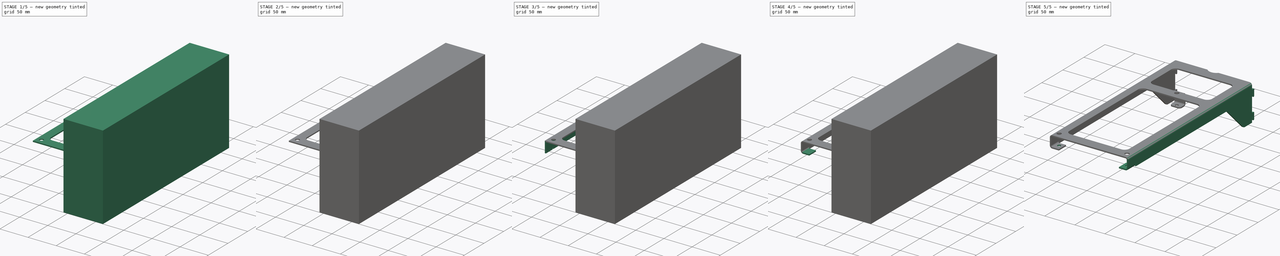
[diagram: build sequence overview — one tinted view per stage of 5, left to right]
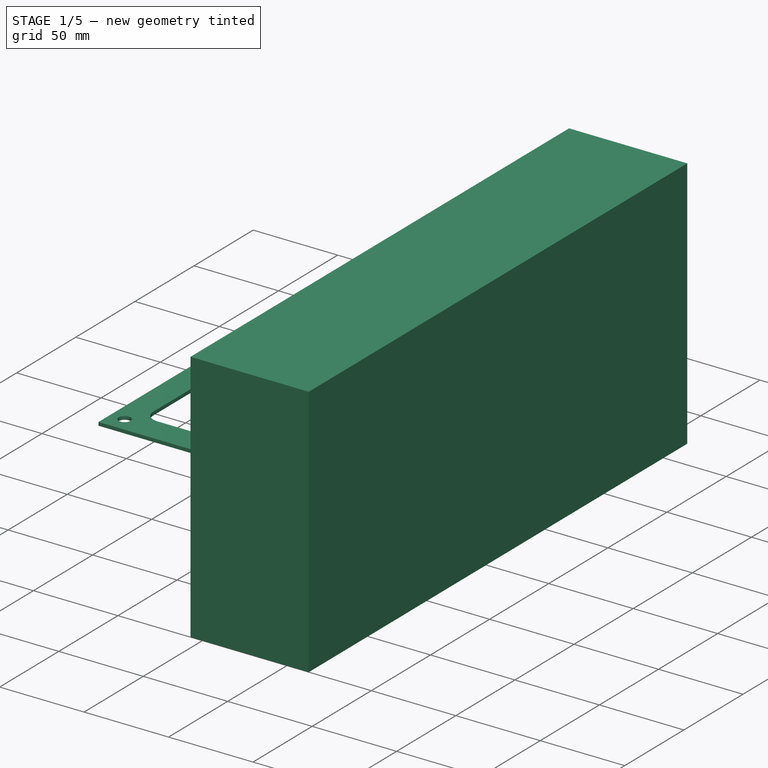
[diagram: stage 1 of 5 — iso view after this stage's code; geometry added in this stage tinted green]
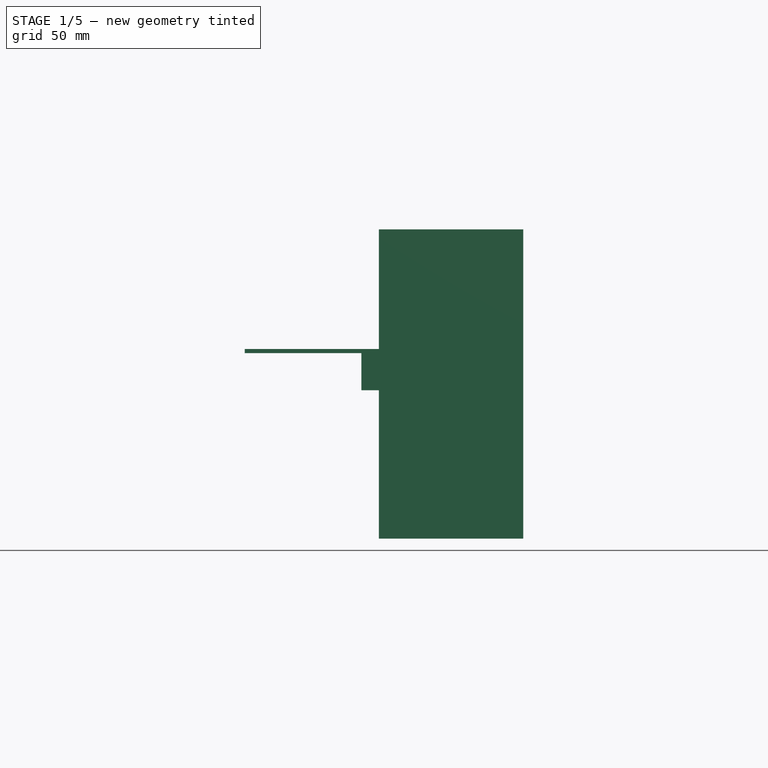
[diagram: stage 1 of 5 — front view after this stage's code; geometry added in this stage tinted green]
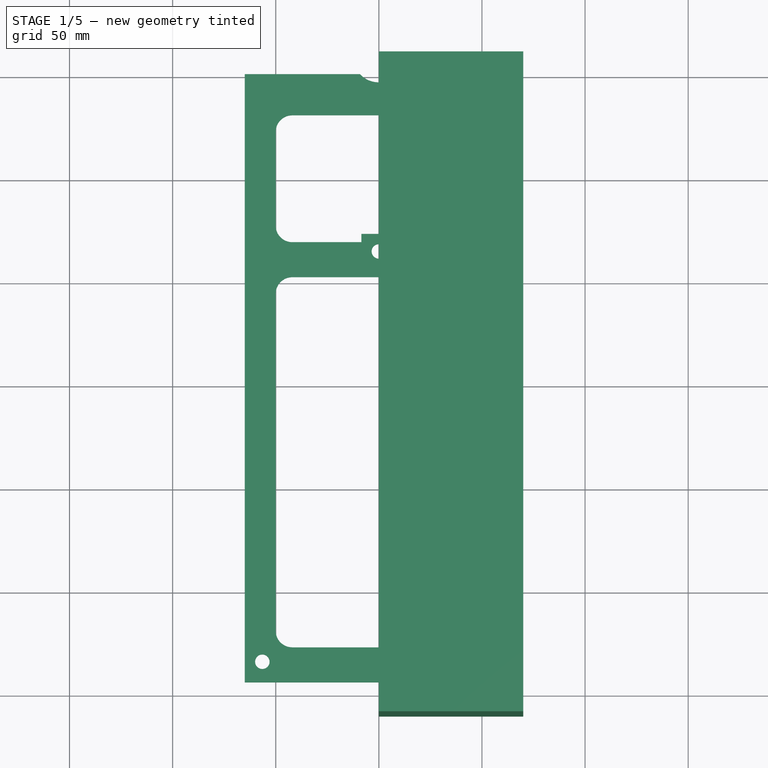
[diagram: stage 1 of 5 — top view after this stage's code; geometry added in this stage tinted green]
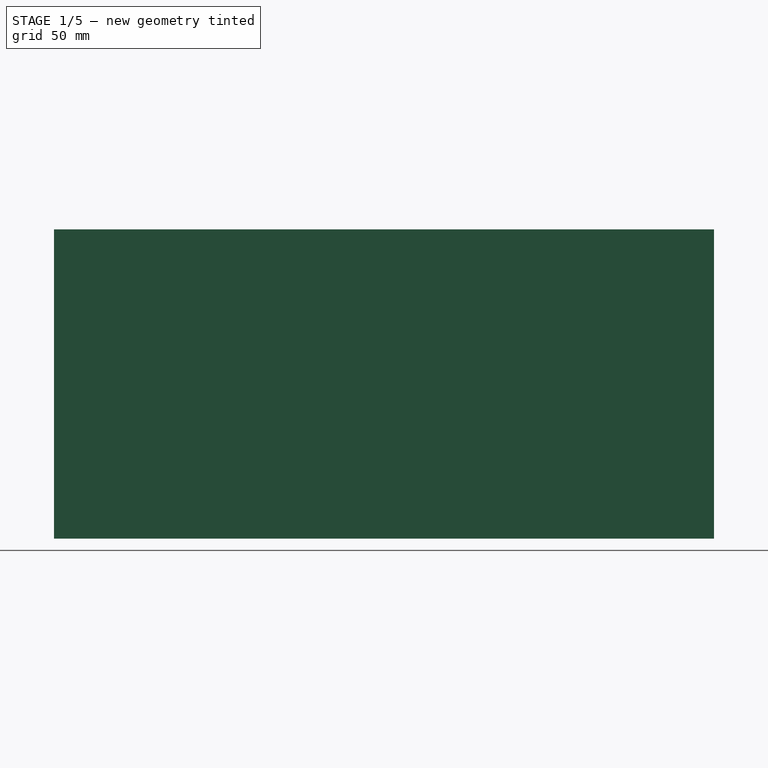
[diagram: stage 1 of 5 — right view after this stage's code; geometry added in this stage tinted green]
FCSTD DOCUMENT  (FreeCAD 0.14R3310 (Git))
Label: 19. ESCUADRA CARTOLADA 003
License: CC-BY 3.0
LicenseURL: http://creativecommons.org/licenses/by/3.0/
objects: PartDesign::Fillet×8, Sketcher::SketchObject×7, PartDesign::Pad×6, PartDesign::Pocket×1, Part::Cut×1, Part::Mirroring×1, Part::Fuse×1
note: 32 computed .brp shape members not serialized (recipe doc carries the construction recipe); baked Part::Feature solids carry a one-line shape summary decoded from their .brp

FEATURE [Sketcher::SketchObject] Sketch
  sketch-geometry (23):
    g0: LineSegment StartX=-65 StartY=0 StartZ=0 EndX=-65 EndY=-295 EndZ=0
    g1: LineSegment StartX=-65 StartY=-295 StartZ=0 EndX=65 EndY=-295 EndZ=0
    g2: LineSegment StartX=65 StartY=-295 StartZ=0 EndX=65 EndY=0 EndZ=0
    g3: ArcOfCircle CenterX=0 CenterY=8.5 CenterZ=0 NormalX=0 NormalY=0 NormalZ=1 Radius=12.5 StartAngle=3.88936 EndAngle=5.53542
    g4: LineSegment StartX=-9.16515 StartY=0 StartZ=0 EndX=-65 EndY=0 EndZ=0
    g5: LineSegment StartX=9.16515 StartY=0 StartZ=0 EndX=65 EndY=0 EndZ=0
    g6: LineSegment StartX=-50 StartY=-20 StartZ=0 EndX=50 EndY=-20 EndZ=0
    g7: LineSegment StartX=50 StartY=-20 StartZ=0 EndX=50 EndY=-81.5 EndZ=0
    g8: LineSegment [constr] StartX=50 StartY=-81.5 StartZ=0 EndX=-50 EndY=-81.5 EndZ=0
    g9: LineSegment StartX=-50 StartY=-81.5 StartZ=0 EndX=-50 EndY=-20 EndZ=0
    g10: LineSegment StartX=-50 StartY=-98.5 StartZ=0 EndX=50 EndY=-98.5 EndZ=0
    g11: LineSegment StartX=50 StartY=-98.5 StartZ=0 EndX=50 EndY=-278 EndZ=0
    g12: LineSegment StartX=50 StartY=-278 StartZ=0 EndX=-50 EndY=-278 EndZ=0
    g13: LineSegment StartX=-50 StartY=-278 StartZ=0 EndX=-50 EndY=-98.5 EndZ=0
    g14: LineSegment StartX=-8.5 StartY=-77.5 StartZ=0 EndX=8.5 EndY=-77.5 EndZ=0
    g15: LineSegment StartX=8.5 StartY=-77.5 StartZ=0 EndX=8.5 EndY=-81.5 EndZ=0
    g16: LineSegment [constr] StartX=8.5 StartY=-81.5 StartZ=0 EndX=-8.5 EndY=-81.5 EndZ=0
    g17: LineSegment StartX=-8.5 StartY=-81.5 StartZ=0 EndX=-8.5 EndY=-77.5 EndZ=0
    g18: LineSegment StartX=-8.5 StartY=-81.5 StartZ=0 EndX=-50 EndY=-81.5 EndZ=0
    g19: LineSegment StartX=8.5 StartY=-81.5 StartZ=0 EndX=50 EndY=-81.5 EndZ=0
    g20: Circle CenterX=0 CenterY=-86 CenterZ=0 NormalX=0 NormalY=0 NormalZ=1 Radius=3.5
    g21: Circle CenterX=-56.5 CenterY=-285 CenterZ=0 NormalX=0 NormalY=0 NormalZ=1 Radius=3.5
    g22: Circle CenterX=56.5 CenterY=-285 CenterZ=0 NormalX=0 NormalY=0 NormalZ=1 Radius=3.5
  constraints (66):
    c: Vertical(g0)
    c: Coincident(g0,g1)
    c: Horizontal(g1)
    c: Coincident(g1,g2)
    c: Vertical(g2)
    c: Symmetric(g2,g0,g-2)
    c: Distance(g1) = 130
    c: DistanceY(g0) = -295
    c: PointOnObject(g0,g-1)
    c: PointOnObject(g3,g-2)
    c: PointOnObject(g3,g-1)
    c: PointOnObject(g3,g-1)
    c: Radius(g3) = 12.5
    c: DistanceY(g-1,g3) = 8.5
    c: Coincident(g4,g3)
    c: Coincident(g4,g0)
    c: Coincident(g5,g3)
    c: Coincident(g5,g2)
    c: Coincident(g6,g7)
    c: Coincident(g7,g8)
    c: Coincident(g8,g9)
    c: Coincident(g9,g6)
    c: Horizontal(g6)
    c: Horizontal(g8)
    c: Vertical(g7)
    c: Vertical(g9)
    c: Coincident(g10,g11)
    c: Coincident(g11,g12)
    c: Coincident(g12,g13)
    c: Coincident(g13,g10)
    c: Horizontal(g10)
    c: Horizontal(g12)
    c: Vertical(g11)
    c: Vertical(g13)
    c: Symmetric(g6,g6,g-2)
    c: Distance(g6,g4) = 20
    c: Distance(g7) = 61.5
    c: Distance(g8) = 100
    c: Coincident(g14,g15)
    c: Coincident(g15,g16)
    c: Coincident(g16,g17)
    c: Coincident(g17,g14)
    c: Horizontal(g14)
    c: Horizontal(g16)
    c: Vertical(g15)
    c: Vertical(g17)
    c: PointOnObject(g15,g8)
    c: Distance(g15) = 4
    c: Distance(g14) = 17
    c: Symmetric(g14,g14,g-2)
    c: Coincident(g18,g16)
    c: Coincident(g18,g8)
    c: Coincident(g19,g15)
    c: Coincident(g19,g7)
    c: Distance(g10,g8) = 17
    c: Distance(g10) = 100
    c: Symmetric(g10,g10,g-2)
    c: Distance(g11) = 179.5
    c: PointOnObject(g20,g-2)
    c: Radius(g20) = 3.5
    c: Distance(g20,g10) = 12.5
    c: Radius(g21) = 3.5
    c: Distance(g21,g0) = 8.5
    c: Distance(g21,g1) = 10
    c: Equal(g22,g21)
    c: Symmetric(g22,g21,g-2)
FEATURE [PartDesign::Pad] Pad
  Length = 2
  Length2 = 100
  Sketch = -> Sketch
  Type = 0
FEATURE [PartDesign::Fillet] Fillet
  Base = -> Pad [Edge35,Edge19,Edge20,Edge38,Edge32,Edge41,Edge23,Edge26]
  Radius = 8
FEATURE [Sketcher::SketchObject] Sketch001
  ExternalGeometry = -> [Fillet]
  Placement = pos=(0,-77.5,0) rot=(0,0.707107,0.707107;3.14159rad)
  Support = -> Fillet [Face24]
  sketch-geometry (4):
    g0: LineSegment StartX=-8.5 StartY=2 StartZ=0 EndX=8.5 EndY=2 EndZ=0
    g1: LineSegment StartX=8.5 StartY=2 StartZ=0 EndX=8.5 EndY=-18 EndZ=0
    g2: LineSegment StartX=8.5 StartY=-18 StartZ=0 EndX=-8.5 EndY=-18 EndZ=0
    g3: LineSegment StartX=-8.5 StartY=-18 StartZ=0 EndX=-8.5 EndY=2 EndZ=0
  constraints (11):
    c: Coincident(g0,g1)
    c: Coincident(g1,g2)
    c: Coincident(g2,g3)
    c: Coincident(g3,g0)
    c: Horizontal(g0)
    c: Horizontal(g2)
    c: Vertical(g1)
    c: Vertical(g3)
    c: Coincident(g0,g-3)
    c: Coincident(g0,g-3)
    c: Distance(g1) = 20
FEATURE [PartDesign::Pad] Pad001
  Length = 2
  Length2 = 100
  Reversed = true
  Sketch = -> Sketch001
  Type = 0
FEATURE [Sketcher::SketchObject] Sketch006
  Placement = pos=(0,0,0) rot=(0.57735,0.57735,0.57735;2.0944rad)
  sketch-geometry (4):
    g0: LineSegment StartX=-310 StartY=60 StartZ=0 EndX=10 EndY=60 EndZ=0
    g1: LineSegment StartX=10 StartY=60 StartZ=0 EndX=10 EndY=-90 EndZ=0
    g2: LineSegment StartX=10 StartY=-90 StartZ=0 EndX=-310 EndY=-90 EndZ=0
    g3: LineSegment StartX=-310 StartY=-90 StartZ=0 EndX=-310 EndY=60 EndZ=0
  constraints (12):
    c: Coincident(g0,g1)
    c: Coincident(g1,g2)
    c: Coincident(g2,g3)
    c: Coincident(g3,g0)
    c: Horizontal(g0)
    c: Horizontal(g2)
    c: Vertical(g1)
    c: Vertical(g3)
    c: DistanceX(g-2,g0) = 10
    c: DistanceY(g-1,g0) = 60
    c: Distance(g1) = 150
    c: Distance(g0) = 320
FEATURE [PartDesign::Pad] Pad005
  Length = 70
  Length2 = 100
  Placement = pos=(0,0,0) rot=(0.57735,0.57735,0.57735;2.0944rad)
  Sketch = -> Sketch006
  Type = 0
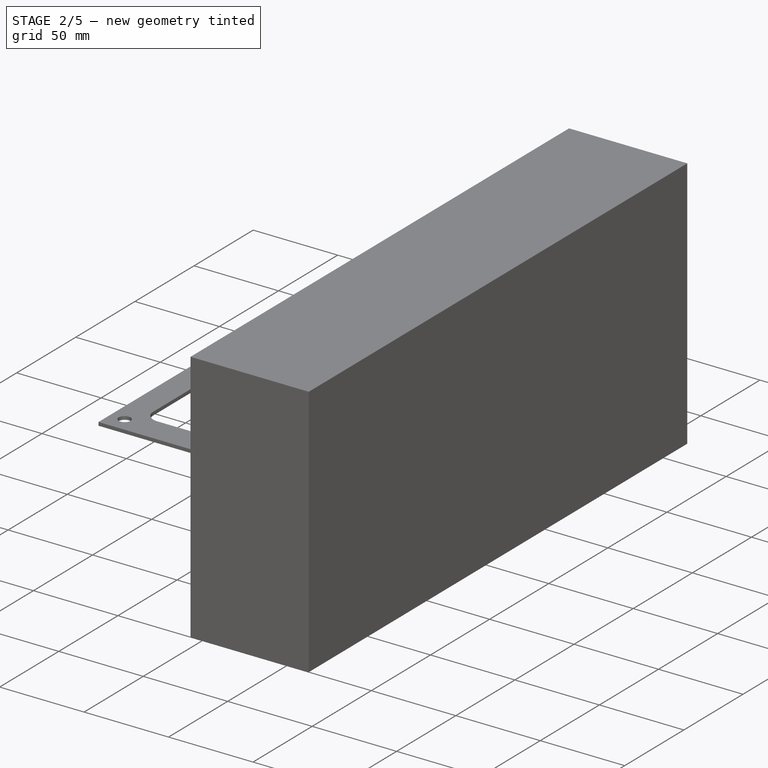
[diagram: stage 2 of 5 — iso view after this stage's code; geometry added in this stage tinted green]
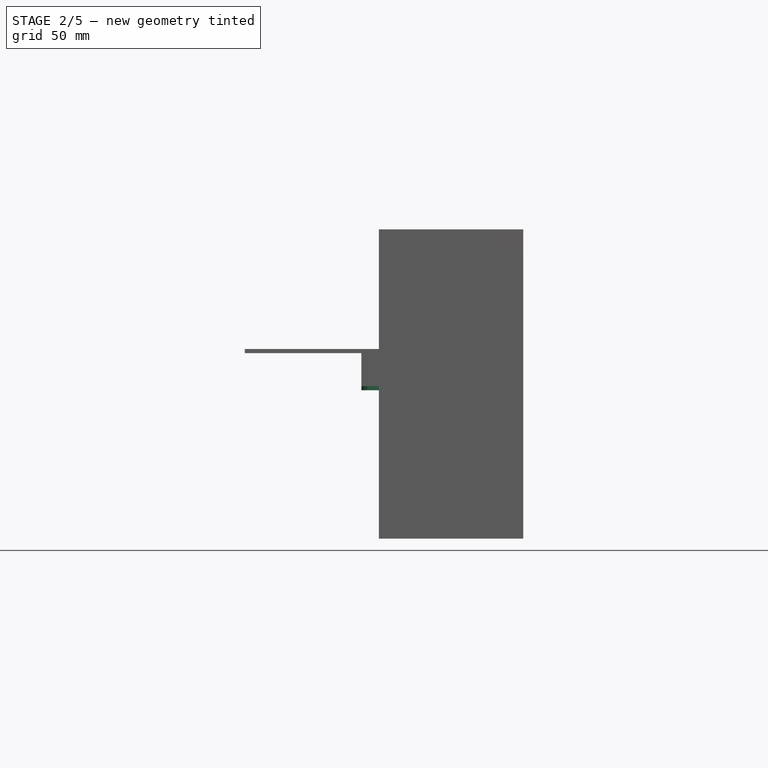
[diagram: stage 2 of 5 — front view after this stage's code; geometry added in this stage tinted green]
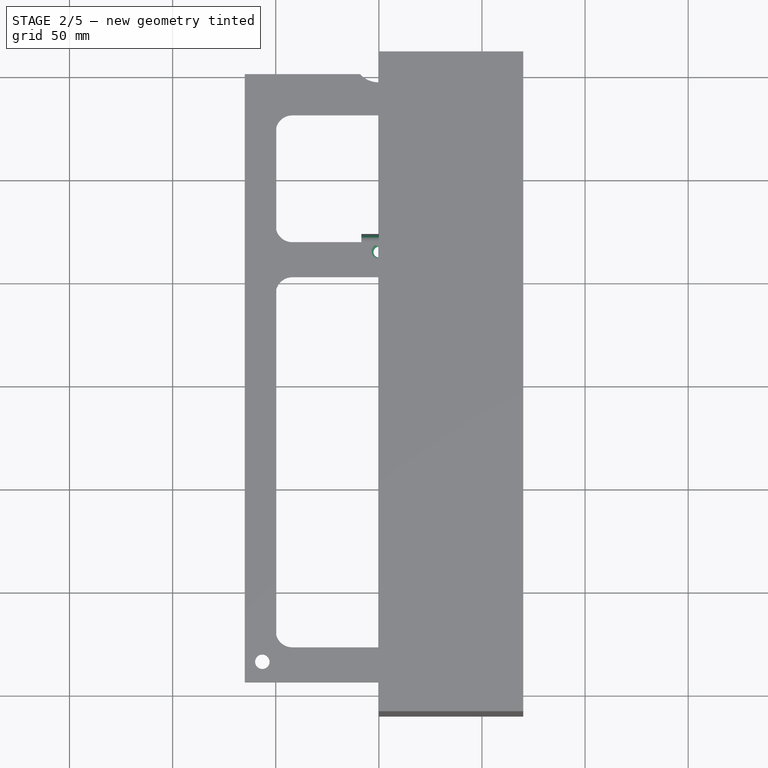
[diagram: stage 2 of 5 — top view after this stage's code; geometry added in this stage tinted green]
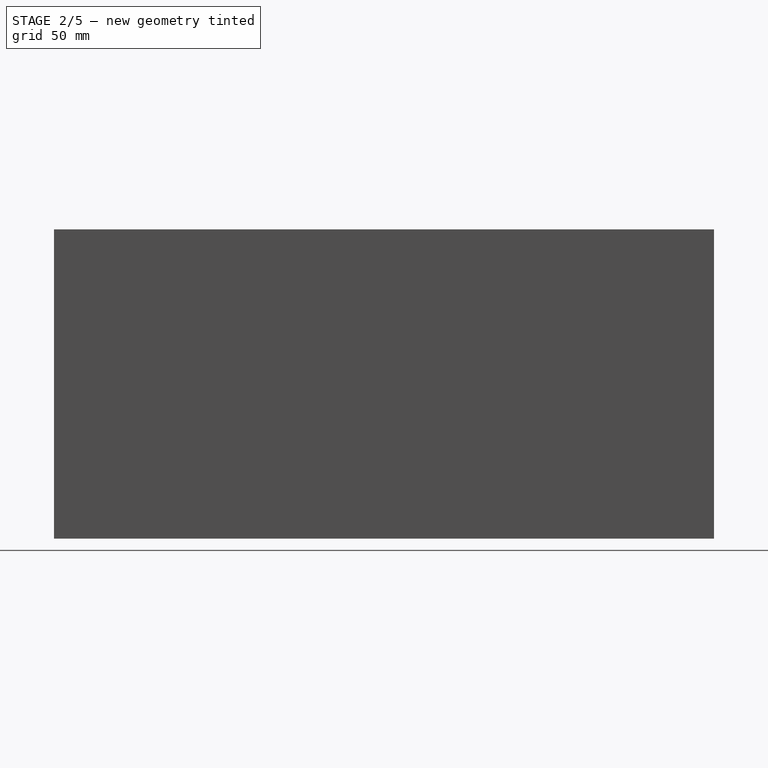
[diagram: stage 2 of 5 — right view after this stage's code; geometry added in this stage tinted green]
FEATURE [Sketcher::SketchObject] Sketch002
  ExternalGeometry = -> [Pad001]
  Placement = pos=(0,0,-18) rot=(1,0,0;3.14159rad)
  Support = -> Pad001 [Face1]
  sketch-geometry (5):
    g0: LineSegment StartX=-8.5 StartY=77.5 StartZ=0 EndX=8.5 EndY=77.5 EndZ=0
    g1: LineSegment StartX=8.5 StartY=77.5 StartZ=0 EndX=8.5 EndY=90.5 EndZ=0
    g2: LineSegment StartX=8.5 StartY=90.5 StartZ=0 EndX=-8.5 EndY=90.5 EndZ=0
    g3: LineSegment StartX=-8.5 StartY=90.5 StartZ=0 EndX=-8.5 EndY=77.5 EndZ=0
    g4: Circle CenterX=0 CenterY=86 CenterZ=0 NormalX=0 NormalY=0 NormalZ=1 Radius=2.6
  constraints (14):
    c: Coincident(g0,g1)
    c: Coincident(g1,g2)
    c: Coincident(g2,g3)
    c: Coincident(g3,g0)
    c: Horizontal(g0)
    c: Horizontal(g2)
    c: Vertical(g1)
    c: Vertical(g3)
    c: Coincident(g0,g-3)
    c: Coincident(g-3,g0)
    c: Distance(g1) = 13
    c: PointOnObject(g4,g-2)
    c: Radius(g4) = 2.6
    c: Distance(g4,g2) = 4.5
FEATURE [PartDesign::Pad] Pad002
  Length = 2
  Length2 = 100
  Reversed = true
  Sketch = -> Sketch002
  Type = 0
FEATURE [PartDesign::Fillet] Fillet001
  Base = -> Pad002 [Edge93,Edge94]
  Radius = 4
FEATURE [PartDesign::Fillet] Fillet002
  Base = -> Fillet001 [Edge30,Edge31]
  Radius = 4
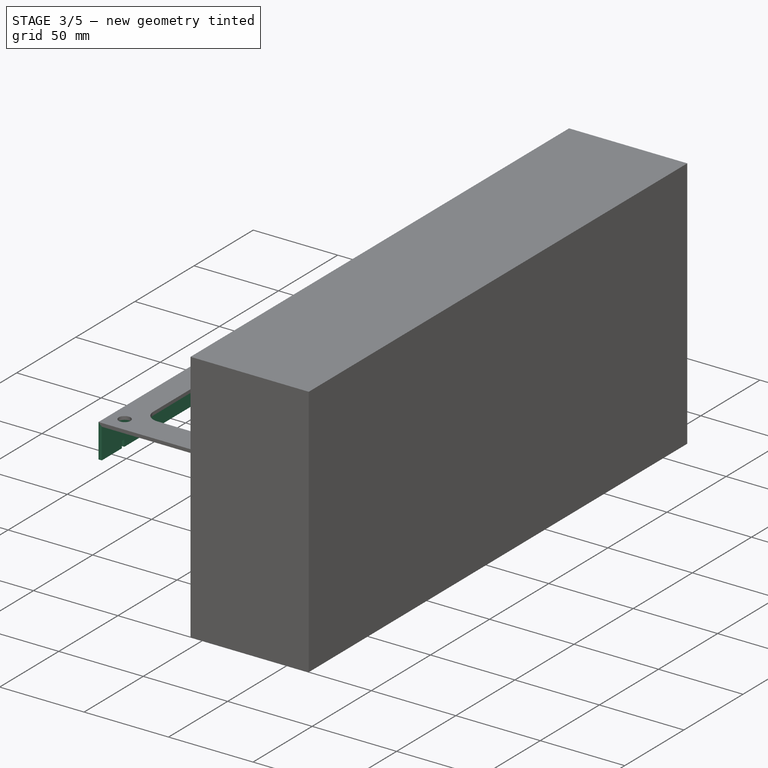
[diagram: stage 3 of 5 — iso view after this stage's code; geometry added in this stage tinted green]
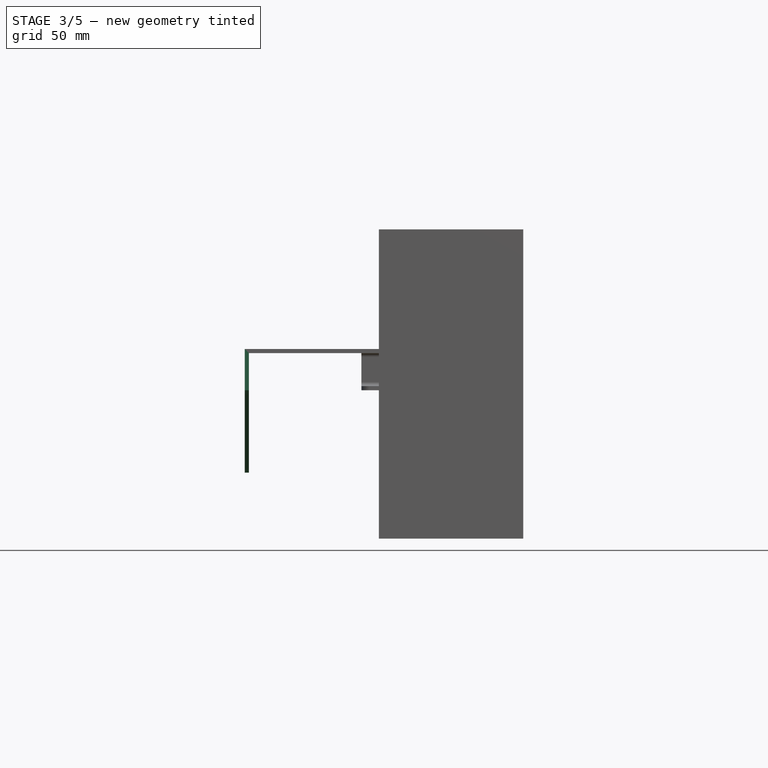
[diagram: stage 3 of 5 — front view after this stage's code; geometry added in this stage tinted green]
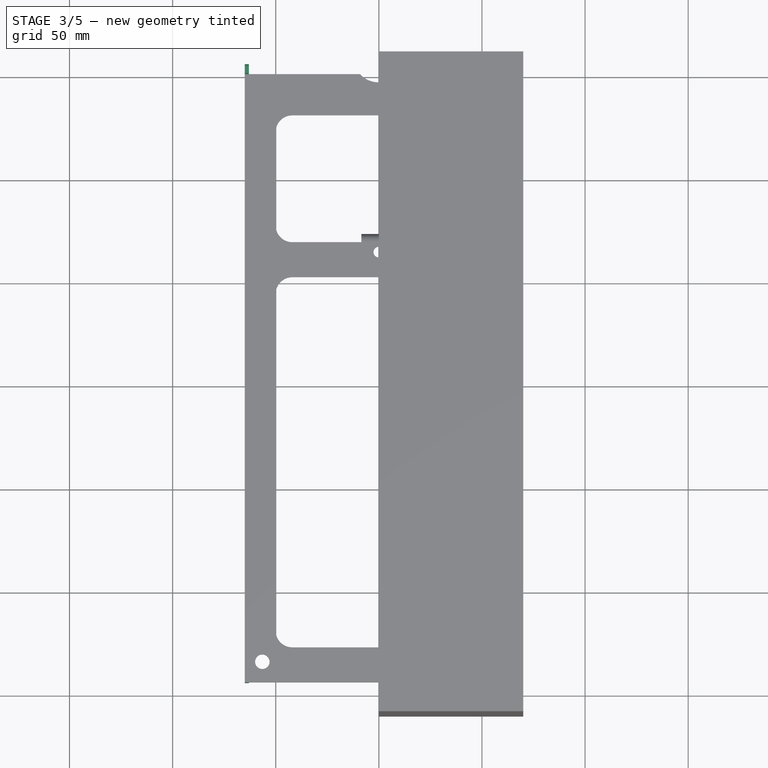
[diagram: stage 3 of 5 — top view after this stage's code; geometry added in this stage tinted green]
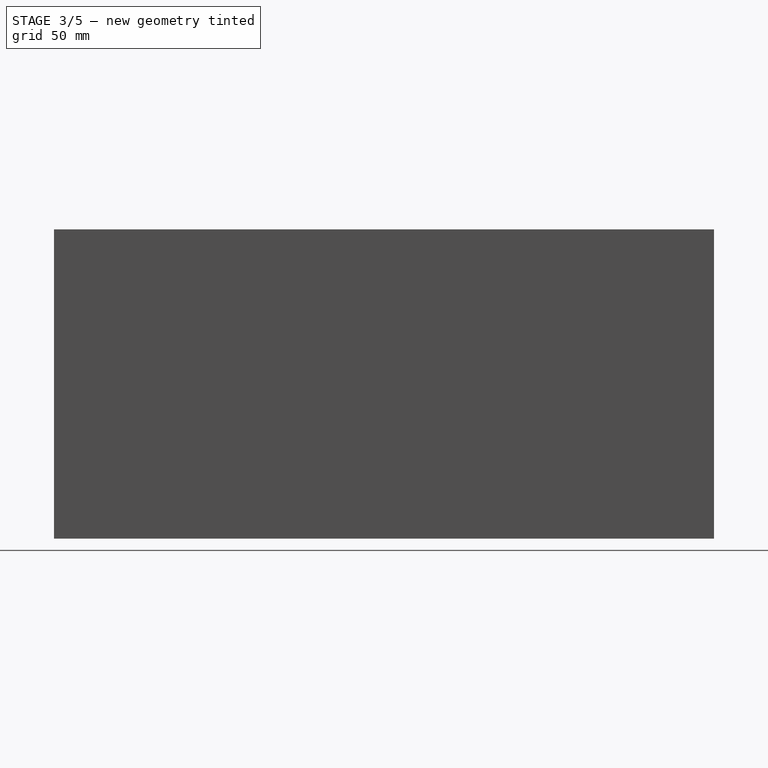
[diagram: stage 3 of 5 — right view after this stage's code; geometry added in this stage tinted green]
FEATURE [PartDesign::Fillet] Fillet003
  Base = -> Fillet002 [Edge30,Edge22]
  Radius = 2
FEATURE [Sketcher::SketchObject] Sketch003
  ExternalGeometry = -> [Fillet003]
  Placement = pos=(-65,0,0) rot=(0.57735,-0.57735,-0.57735;2.0944rad)
  Support = -> Fillet003 [Face28]
  sketch-geometry (26):
    g0: LineSegment StartX=0 StartY=2 StartZ=0 EndX=295 EndY=2 EndZ=0
    g1: LineSegment StartX=295 StartY=2 StartZ=0 EndX=295 EndY=-18 EndZ=0
    g2: LineSegment [constr] StartX=0 StartY=-58 StartZ=0 EndX=0 EndY=2 EndZ=0
    g3: LineSegment StartX=276.007 StartY=-18 StartZ=0 EndX=63.3174 EndY=-18 EndZ=0
    g4: LineSegment StartX=57.6606 StartY=-20.3431 StartZ=0 EndX=22.3469 EndY=-55.6569 EndZ=0
    g5: LineSegment StartX=0 StartY=-58 StartZ=0 EndX=16.69 EndY=-58 EndZ=0
    g6: ArcOfCircle CenterX=16.69 CenterY=-50 CenterZ=0 NormalX=0 NormalY=0 NormalZ=1 Radius=8 StartAngle=4.71239 EndAngle=5.49779
    g7: ArcOfCircle CenterX=63.3174 CenterY=-26 CenterZ=0 NormalX=0 NormalY=0 NormalZ=1 Radius=8 StartAngle=1.57079 EndAngle=2.35619
    g8: LineSegment StartX=0 StartY=2 StartZ=0 EndX=0 EndY=-8.5 EndZ=0
    g9: LineSegment StartX=0 StartY=-8.5 StartZ=0 EndX=-5 EndY=-8.5 EndZ=0
    g10: LineSegment StartX=-5 StartY=-8.5 StartZ=0 EndX=-5 EndY=-20.5 EndZ=0
    g11: ArcOfCircle CenterX=-0.93 CenterY=-14.63 CenterZ=0 NormalX=0 NormalY=0 NormalZ=1 Radius=0.93 StartAngle=6.28319 EndAngle=9.29388
    g12: LineSegment StartX=-1.85204 StartY=-14.5086 StartZ=0 EndX=-2.64083 EndY=-20.5 EndZ=0
    g13: LineSegment StartX=-5 StartY=-20.5 StartZ=0 EndX=-2.64083 EndY=-20.5 EndZ=0
    g14: LineSegment StartX=0 StartY=-14.63 StartZ=0 EndX=0 EndY=-43.5 EndZ=0
    g15: LineSegment StartX=0 StartY=-43.5 StartZ=0 EndX=-5 EndY=-43.5 EndZ=0
    g16: LineSegment StartX=-5 StartY=-43.5 StartZ=0 EndX=-5 EndY=-55.5 EndZ=0
    g17: LineSegment StartX=-2 StartY=-49.5 StartZ=0 EndX=-2 EndY=-52.5 EndZ=0
    g18: ArcOfCircle CenterX=-1 CenterY=-49.5 CenterZ=0 NormalX=0 NormalY=0 NormalZ=1 Radius=1 StartAngle=7.767e-09 EndAngle=3.14159
    g19: LineSegment StartX=0 StartY=-49.5 StartZ=0 EndX=0 EndY=-58 EndZ=0
    g20: LineSegment StartX=-2 StartY=-52.5 StartZ=0 EndX=-2.39496 EndY=-55.5 EndZ=0
    g21: LineSegment StartX=-5 StartY=-55.5 StartZ=0 EndX=-2.39496 EndY=-55.5 EndZ=0
    g22: LineSegment StartX=276.007 StartY=-18 StartZ=0 EndX=276.007 EndY=-14 EndZ=0
    g23: LineSegment StartX=276.007 StartY=-14 StartZ=0 EndX=278.007 EndY=-14 EndZ=0
    g24: LineSegment StartX=278.007 StartY=-14 StartZ=0 EndX=278.007 EndY=-18 EndZ=0
    g25: LineSegment StartX=278.007 StartY=-18 StartZ=0 EndX=295 EndY=-18 EndZ=0
  constraints (79):
    c: Coincident(g0,g1)
    c: Coincident(g2,g0)
    c: Vertical(g1)
    c: Coincident(g0,g-3)
    c: Coincident(g0,g-3)
    c: Distance(g2) = 60
    c: Horizontal(g3)
    c: Distance(g3) = 212.69
    c: Angle(g4,g3) = 2.35619
    c: Coincident(g5,g2)
    c: Horizontal(g5)
    c: Distance(g5) = 16.69
    c: Coincident(g6,g5)
    c: Radius(g6) = 8
    c: Coincident(g4,g6)
    c: Tangent(g5,g6)
    c: Tangent(g7,g3)
    c: Coincident(g7,g3)
    c: Radius(g7) = 8
    c: Coincident(g7,g4)
    c: Tangent(g7,g4)
    c: Tangent(g6,g4)
    c: Coincident(g8,g0)
    c: Vertical(g8)
    c: DistanceY(g-1,g8) = -8.5
    c: Coincident(g9,g8)
    c: Horizontal(g9)
    c: Distance(g9) = 5
    c: Coincident(g10,g9)
    c: Vertical(g10)
    c: Tangent(g11,g2)
    c: PointOnObject(g11,g2)
    c: Distance(g11,g2) = 0.93
    c: DistanceY(g-1,g11) = -14.63
    c: Coincident(g12,g11)
    c: Tangent(g11,g12)
    c: Angle(g12,g2) = 0.1309
    c: Coincident(g13,g10)
    c: Horizontal(g13)
    c: Coincident(g13,g12)
    c: Coincident(g14,g11)
    c: PointOnObject(g14,g2)
    c: Vertical(g14)
    c: Coincident(g15,g14)
    c: Horizontal(g15)
    c: Distance(g15) = 5
    c: Coincident(g16,g15)
    c: Vertical(g16)
    c: Distance(g16) = 12
    c: Distance(g10) = 12
    c: Distance(g10,g15) = 23
    c: Vertical(g17)
    c: Distance(g17,g2) = 2
    c: Coincident(g18,g17)
    c: PointOnObject(g18,g2)
    c: Distance(g18,g5) = 8.5
    c: Tangent(g18,g17)
    c: Coincident(g19,g18)
    c: Coincident(g19,g2)
    c: Tangent(g18,g2)
    c: Coincident(g20,g17)
    c: Distance(g17) = 3
    c: Angle(g17,g20) = 3.01069
    c: Coincident(g21,g16)
    c: Coincident(g21,g20)
    c: Horizontal(g21)
    c: Distance(g1) = 20
    c: Distance(g0,g3) = 20
    c: Coincident(g3,g22)
    c: Vertical(g22)
    c: Coincident(g22,g23)
    c: Horizontal(g23)
    c: Coincident(g23,g24)
    c: Vertical(g24)
    c: Coincident(g24,g25)
    c: Coincident(g25,g1)
    c: Horizontal(g25)
    c: Distance(g24) = 4
    c: Distance(g23) = 2
FEATURE [PartDesign::Pad] Pad003
  Length = 2
  Length2 = 100
  Reversed = true
  Sketch = -> Sketch003
  Type = 0
FEATURE [PartDesign::Fillet] Fillet004
  Base = -> Pad003 [Edge31,Edge5,Edge2,Edge1]
  Radius = 1
FEATURE [PartDesign::Fillet] Fillet005
  Base = -> Fillet004 [Edge107,Edge109,Edge111,Edge113]
  Radius = 1
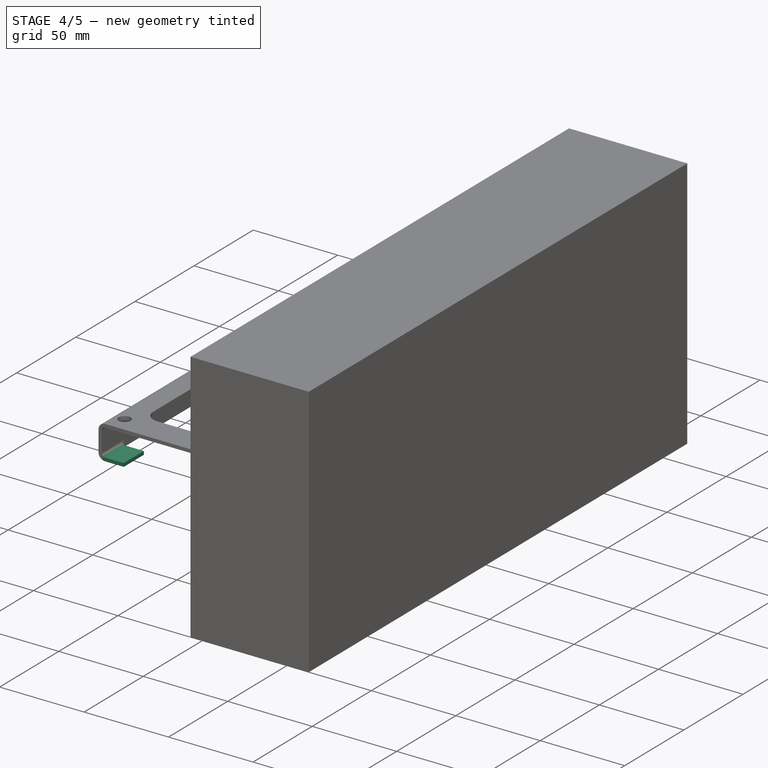
[diagram: stage 4 of 5 — iso view after this stage's code; geometry added in this stage tinted green]
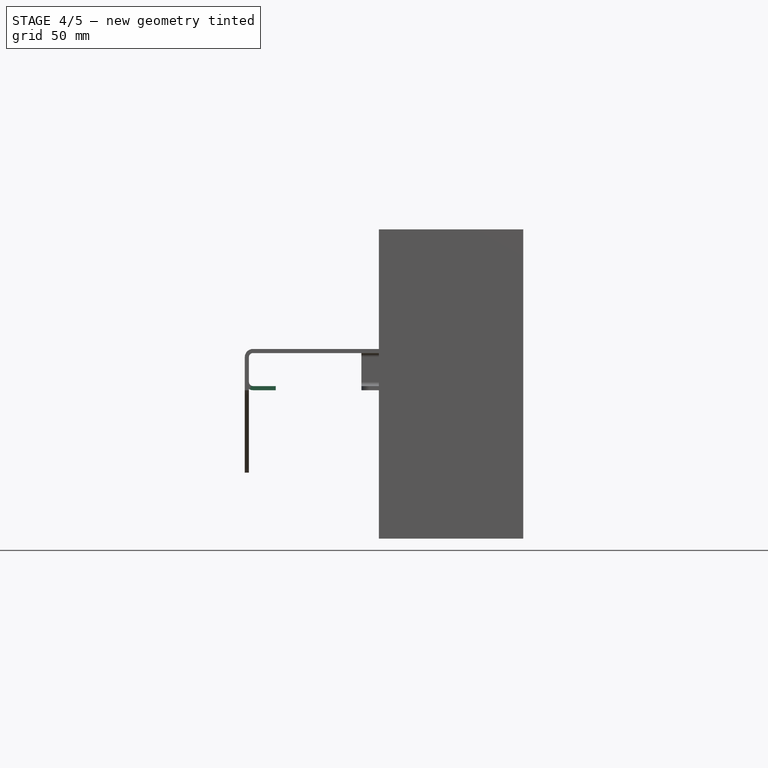
[diagram: stage 4 of 5 — front view after this stage's code; geometry added in this stage tinted green]
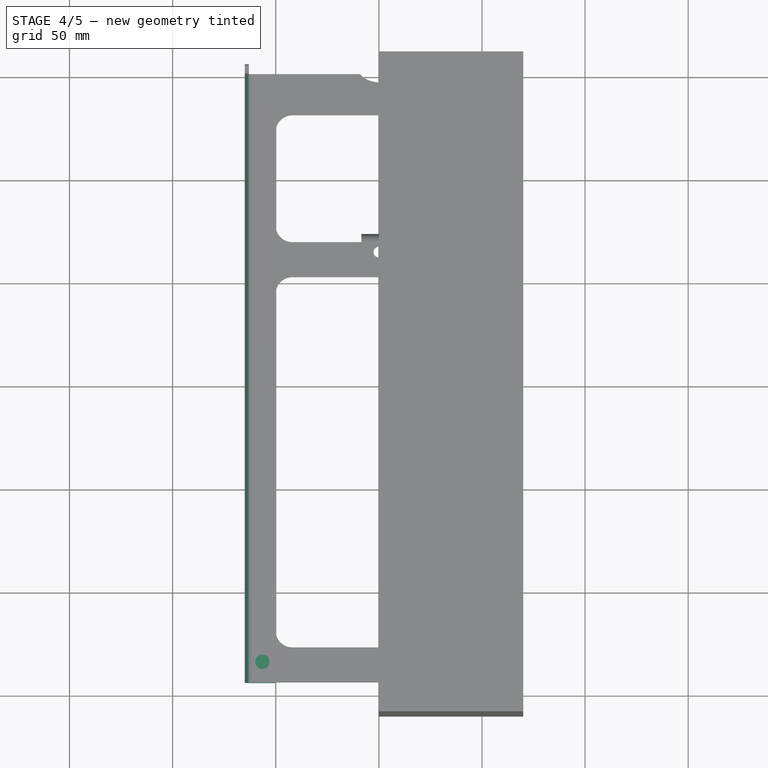
[diagram: stage 4 of 5 — top view after this stage's code; geometry added in this stage tinted green]
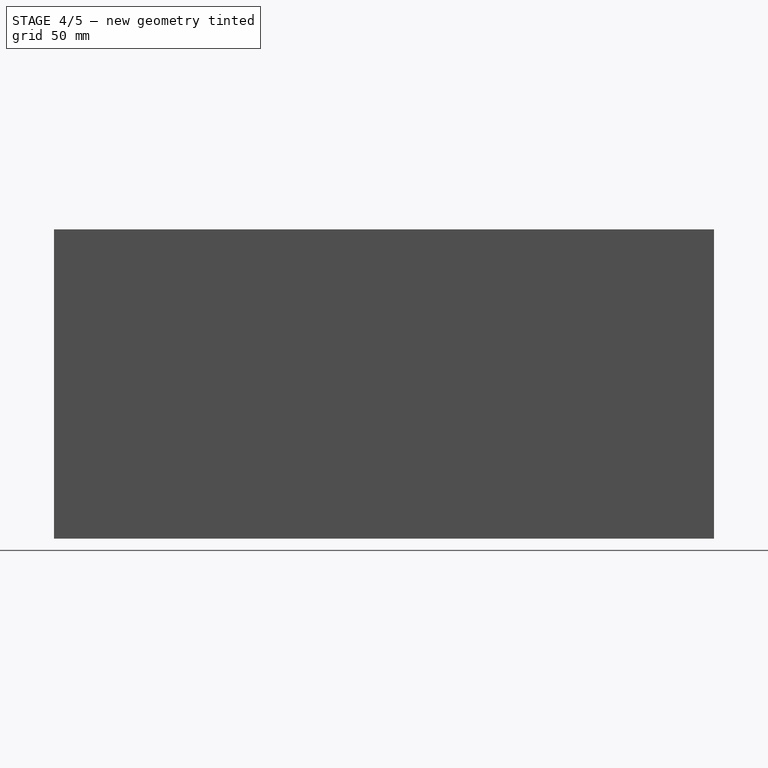
[diagram: stage 4 of 5 — right view after this stage's code; geometry added in this stage tinted green]
FEATURE [Sketcher::SketchObject] Sketch004
  ExternalGeometry = -> [Fillet005]
  Placement = pos=(-63,0,0) rot=(0.57735,0.57735,0.57735;2.0944rad)
  Support = -> Fillet005 [Face35]
  sketch-geometry (4):
    g0: LineSegment StartX=-295 StartY=-18 StartZ=0 EndX=-278.007 EndY=-18 EndZ=0
    g1: LineSegment StartX=-278.007 StartY=-18 StartZ=0 EndX=-278.007 EndY=-16 EndZ=0
    g2: LineSegment StartX=-278.007 StartY=-16 StartZ=0 EndX=-295 EndY=-16 EndZ=0
    g3: LineSegment StartX=-295 StartY=-16 StartZ=0 EndX=-295 EndY=-18 EndZ=0
  constraints (11):
    c: Coincident(g0,g1)
    c: Coincident(g1,g2)
    c: Coincident(g2,g3)
    c: Coincident(g3,g0)
    c: Horizontal(g0)
    c: Horizontal(g2)
    c: Vertical(g1)
    c: Vertical(g3)
    c: Coincident(g0,g-3)
    c: Coincident(g0,g-3)
    c: Distance(g3) = 2
FEATURE [PartDesign::Pad] Pad004
  Length = 13
  Length2 = 100
  Sketch = -> Sketch004
  Type = 0
FEATURE [PartDesign::Fillet] Fillet006
  Base = -> Pad004 [Edge42,Edge63]
  Radius = 2
FEATURE [PartDesign::Fillet] Fillet007
  Base = -> Fillet006 [Edge24,Edge47]
  Radius = 4
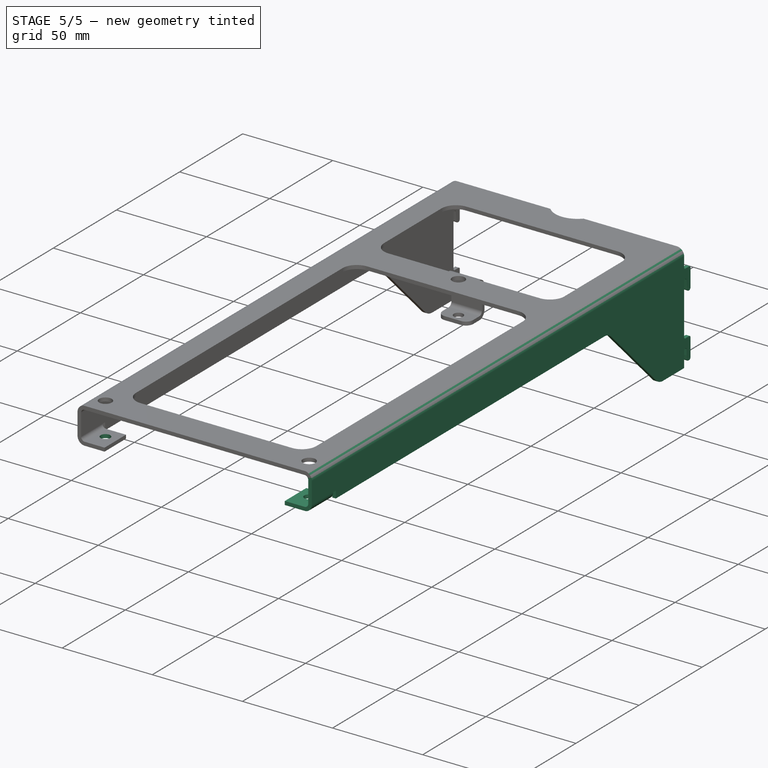
[diagram: stage 5 of 5 — iso view after this stage's code; geometry added in this stage tinted green]
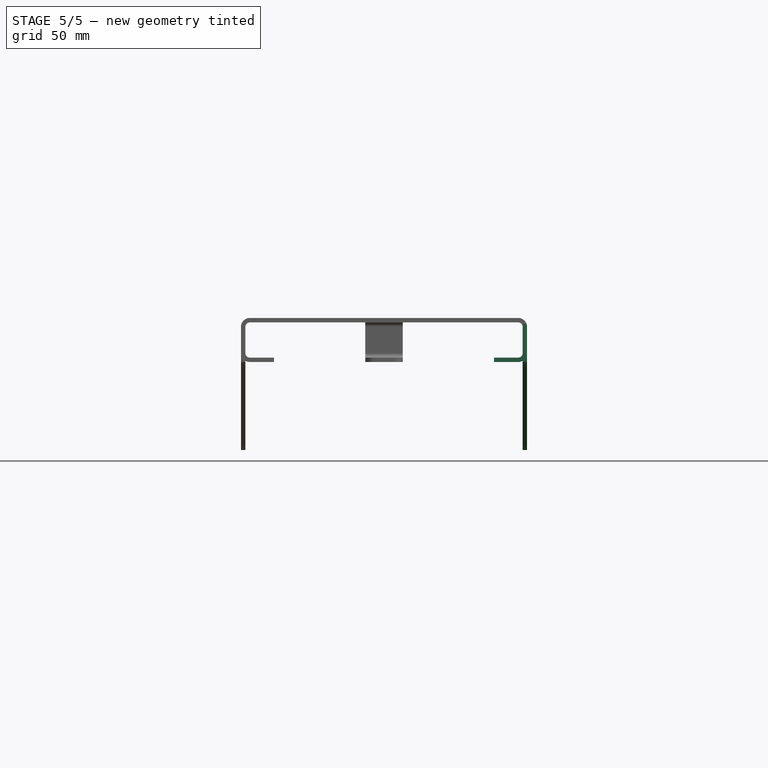
[diagram: stage 5 of 5 — front view after this stage's code; geometry added in this stage tinted green]
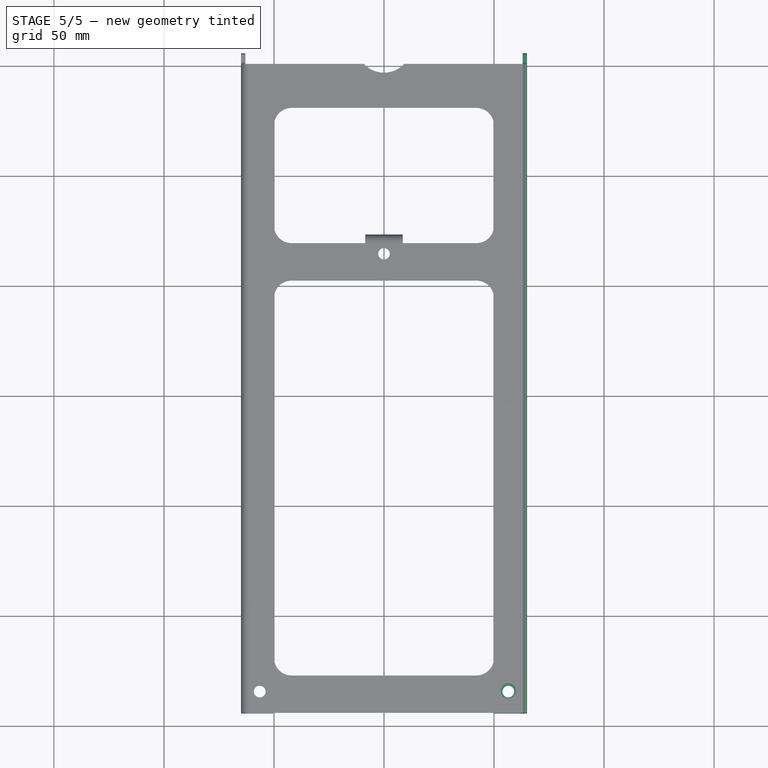
[diagram: stage 5 of 5 — top view after this stage's code; geometry added in this stage tinted green]
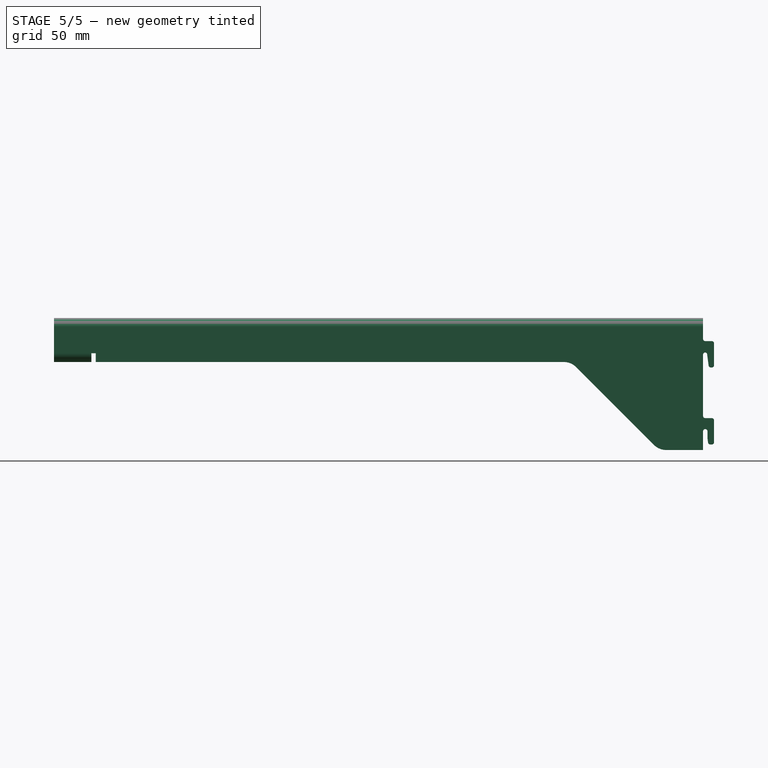
[diagram: stage 5 of 5 — right view after this stage's code; geometry added in this stage tinted green]
FEATURE [Sketcher::SketchObject] Sketch005
  Placement = pos=(0,0,-18) rot=(1,0,0;3.14159rad)
  Support = -> Fillet007 [Face2]
  sketch-geometry (1):
    g0: Circle CenterX=-56.5 CenterY=285 CenterZ=0 NormalX=0 NormalY=0 NormalZ=1 Radius=2.66073
  constraints (2):
    c: DistanceX(g-2,g0) = -56.5
    c: DistanceY(g-1,g0) = 285
FEATURE [PartDesign::Pocket] Pocket
  Length = 5
  Sketch = -> Sketch005
  Type = 0
FEATURE [Part::Cut] Cut
  Base = -> Pocket
  Tool = -> Pad005
FEATURE [Part::Mirroring] Part__Mirroring  label="Cut (Mirror #1)"
  Base = (0,0,0)
  Normal = (1,0,0)
  Source = -> Cut
FEATURE [Part::Fuse] Fusion
  Base = -> Cut
  Tool = -> Part__Mirroring
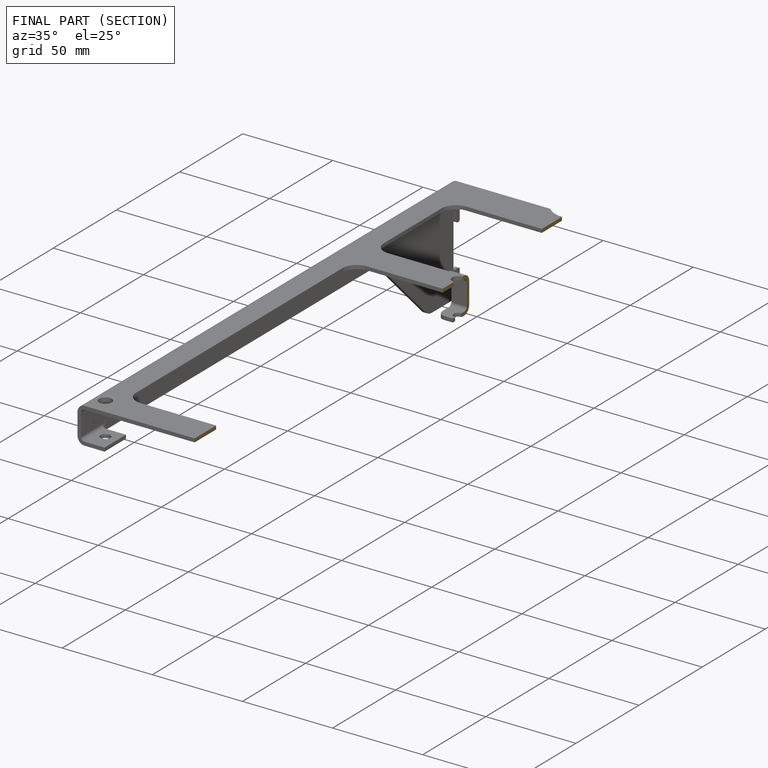
[diagram: finished part — half-section view (interior)]
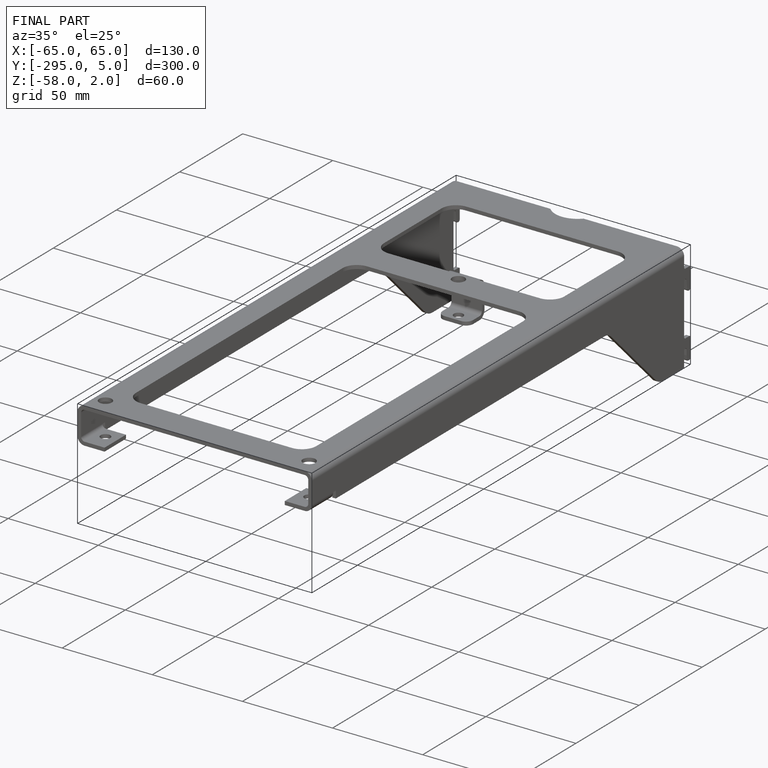
[diagram: finished part — iso view with bounding-box wireframe]
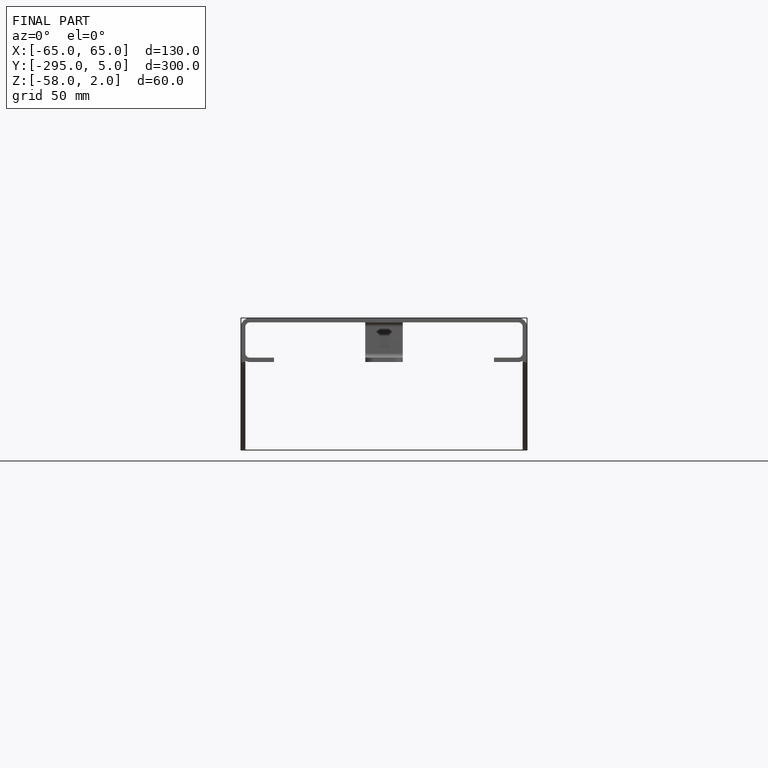
[diagram: finished part — front view with bounding-box wireframe]
